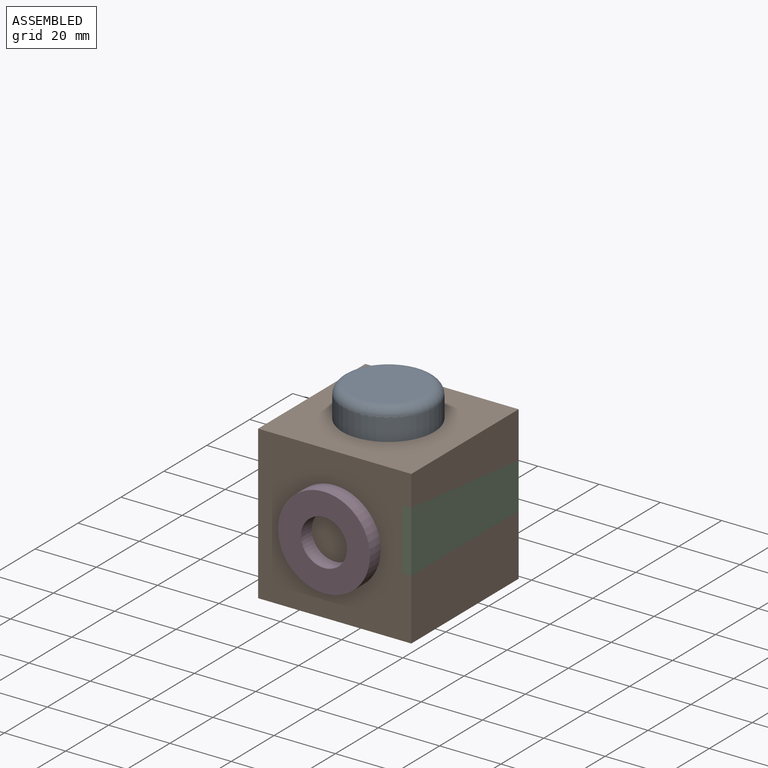
[diagram: assembled view]
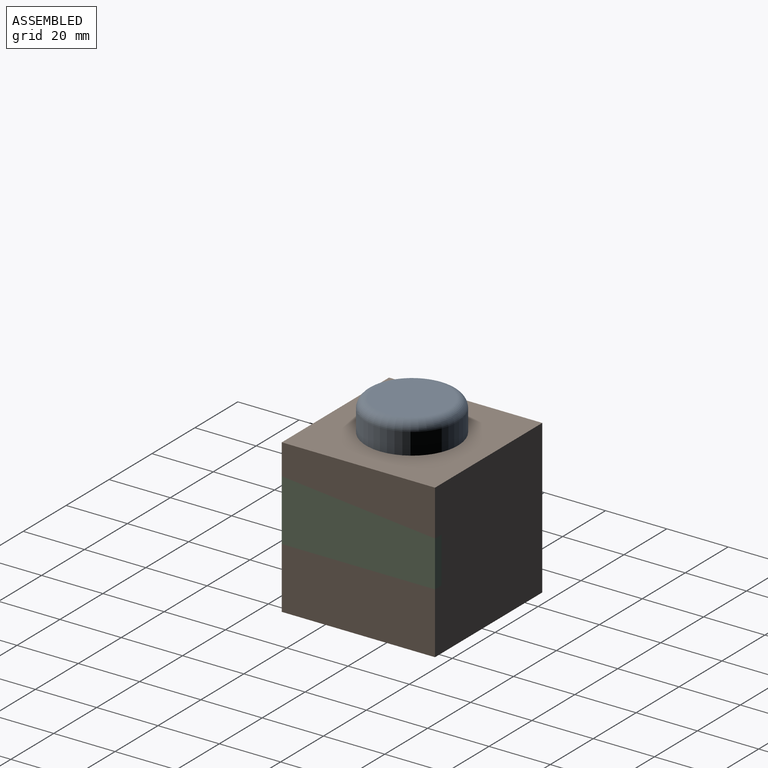
[diagram: assembled view, second angle]
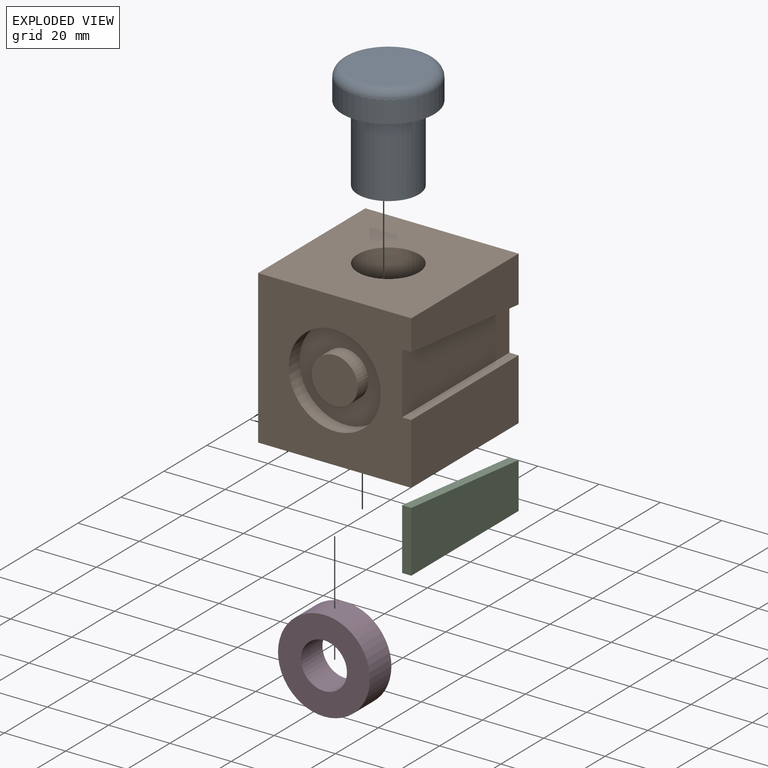
[diagram: exploded view]
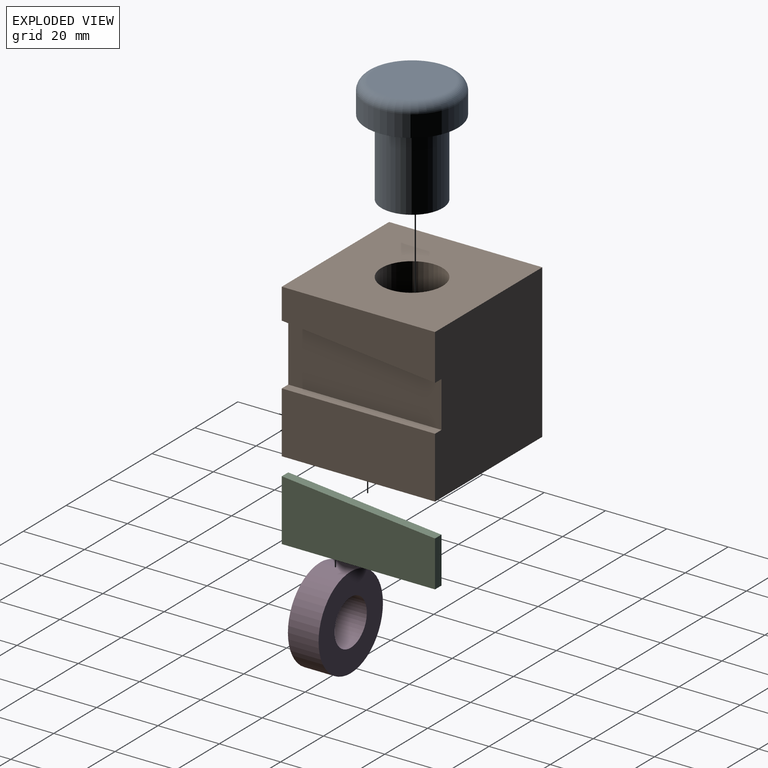
[diagram: exploded view, second angle]
ASSEMBLY  parts=4 mates=3
PART A: 6 faces, bbox 32.5x32.5x35 mm
  f0: cylinder r=10mm len=25mm, axis (0,0,-1), area 1570.8mm2, adj f1,f4
  f1: plane 20x20mm, normal (0,0,-1), area 314.2mm2, adj f0
  f2: cylinder r=15mm len=30mm, axis (0,0,-1), area 659.7mm2, adj f4,f5
  f3: plane 24x24mm, normal (0,0,1), area 452.4mm2, adj f5
  f4: plane 30x30mm, normal (0,0,-1), area 392.7mm2, adj f0,f2
  f5: torus R=12mm, axis (0,0,1), area 411.9mm2, adj f2,f3
PART B: 16 faces, bbox 50x50x50 mm
  f0: plane 50x20mm, normal (1,0,0), area 1000mm2, adj f2,f4,f6,f13
  f1: plane 50x15mm, normal (1,0,0), area 625mm2, adj f2,f4,f5,f14
  f2: plane 50x50mm, normal (0,1,0), area 2455mm2, adj f0,f1,f3,f5,f6,f13,f14,f15
  f3: plane 50x50mm, normal (-1,0,0), area 2500mm2, adj f2,f4,f5,f6
  f4: plane 50x50mm, normal (0,-1,0), area 1733.1mm2, adj f0,f1,f3,f5,f6,f10,f13,f14
  f5: plane 50x50mm, normal (0,0,1), area 2185.8mm2, adj f1,f2,f3,f4,f7
  f6: plane 50x50mm, normal (0,0,-1), area 2500mm2, adj f0,f2,f3,f4
  f7: cylinder r=10mm len=25mm, axis (0,0,1), area 1570.8mm2, adj f5,f8
  f8: plane 20x20mm, normal (0,0,1), area 314.2mm2, adj f7
  f9: cylinder r=7.5mm len=15mm, axis (0,-1,0), area 235.6mm2, adj f11,f12
  f10: cylinder r=15mm len=30mm, axis (0,-1,0), area 471.2mm2, adj f4,f11
  f11: plane 30x30mm, normal (0,-1,0), area 530.1mm2, adj f9,f10
  f12: plane 15x15mm, normal (0,-1,0), area 176.7mm2, adj f9
  f13: plane 50x3mm, normal (0,0,1), area 150mm2, adj f0,f2,f4,f15
  f14: plane 50x5mm, normal (0,-0.1,-1), area 150.7mm2, adj f1,f2,f4,f15
  f15: plane 50x20mm, normal (1,0,0), area 875mm2, adj f2,f4,f13,f14
PART C: 6 faces, bbox 3x50x20 mm
  f0: plane 50x3mm, normal (0,0,-1), area 150mm2, adj f1,f3,f4,f5
  f1: plane 15x3mm, normal (0,1,0), area 45mm2, adj f0,f2,f4,f5
  f2: plane 50x5mm, normal (0,0.1,1), area 150.7mm2, adj f1,f3,f4,f5
  f3: plane 20x3mm, normal (0,-1,0), area 60mm2, adj f0,f2,f4,f5
  f4: plane 50x20mm, normal (1,0,0), area 875mm2, adj f0,f1,f2,f3
  f5: plane 50x20mm, normal (-1,0,0), area 875mm2, adj f0,f1,f2,f3
PART D: 4 faces, bbox 30x10x30 mm
  f0: cylinder r=7.5mm len=15mm, axis (0,1,0), area 471.2mm2, adj f2,f3
  f1: cylinder r=15mm len=30mm, axis (0,1,0), area 942.5mm2, adj f2,f3
  f2: plane 30x30mm, normal (0,-1,0), area 530.1mm2, adj f0,f1
  f3: plane 30x30mm, normal (0,1,0), area 530.1mm2, adj f0,f1
PLACE A t=(-54.2,-15.04,50.12)mm
PLACE B t=(-54.2,-15.04,24.92)mm
PLACE C t=(-32.2,9.96,44.92)mm
PLACE D t=(-54.2,-35.04,49.92)mm
MATE fastened C.f5 <-> B.f15  axis (-1,0,0) through (-32.2,-16.23,53.73)mm
MATE slider A.f0 <-> B.f7  axis (0,0,-1) through (-54.2,-15.04,50.12)mm
MATE fastened B.f9 <-> D.f1  axis (0,-1,0) through (-54.2,-35.04,49.92)mm
